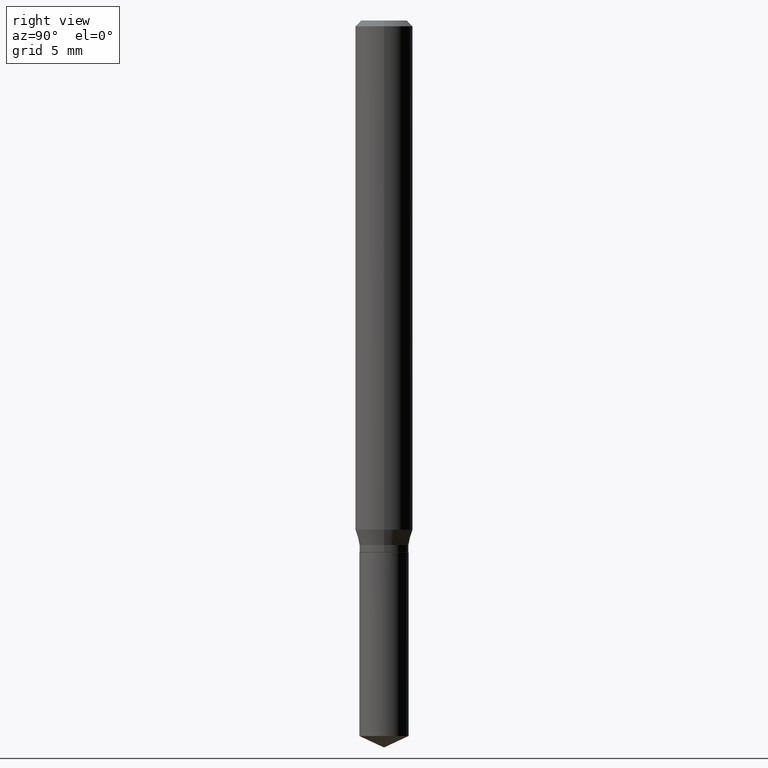
[diagram: clean part render]
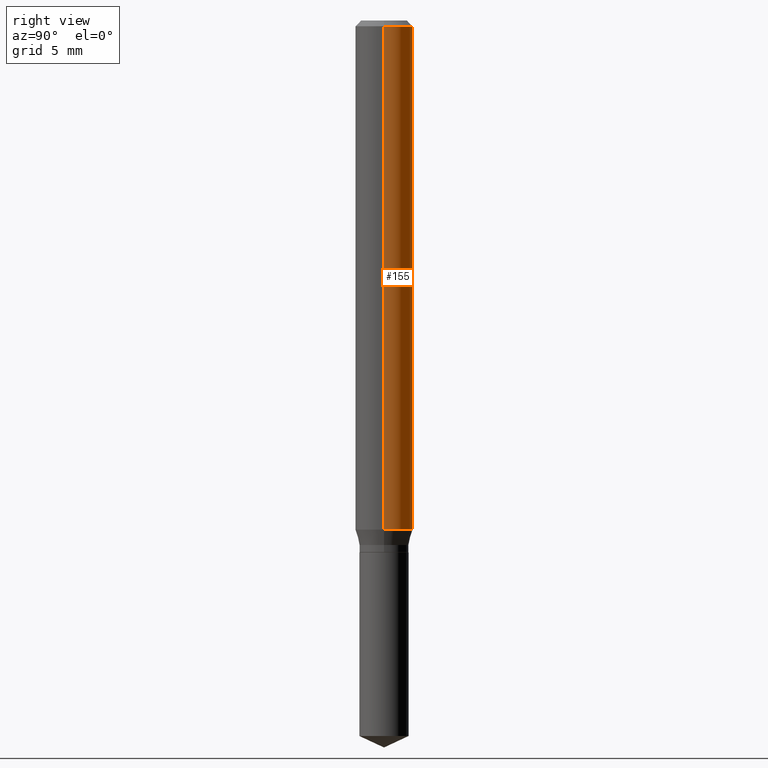
[diagram: same view with one face highlighted and labeled with its STEP entity id]
A machine part, right view. The second image highlights one B-rep face of the part: STEP entity #155.
In plain terms, the highlighted cylindrical surface (edge-blend (fillet) strip) has radius 1.4999 mm, axis along (-0, 0, 1).
Its self-contained STEP definition (entity closure, byte-faithful):
#3 = EDGE_CURVE ( 'NONE', #26, #203, #301, .T. ) ;
#7 = DIRECTION ( 'NONE',  ( -2.445468806185136877E-29, 3.491481338843145188E-15, 1.000000000000000000 ) ) ;
#18 = FACE_OUTER_BOUND ( 'NONE', #472, .T. ) ;
#26 = VERTEX_POINT ( 'NONE', #123 ) ;
#39 = AXIS2_PLACEMENT_3D ( 'NONE', #255, #437, #46 ) ;
#46 = DIRECTION ( 'NONE',  ( 1.000000000000000000, -6.982962677686266711E-15, 4.876176775795936353E-29 ) ) ;
#47 = EDGE_CURVE ( 'NONE', #441, #171, #166, .T. ) ;
#52 = CARTESIAN_POINT ( 'NONE',  ( 2.562274595626701165E-29, -3.658249049423866489E-15, -1.047764170676042550 ) ) ;
#73 = LINE ( 'NONE', #383, #457 ) ;
#87 = CARTESIAN_POINT ( 'NONE',  ( 2.888098660104663328E-31, -4.123439461173779030E-17, -0.01181000000000006871 ) ) ;
#118 = CARTESIAN_POINT ( 'NONE',  ( 0.05904999999999999832, -4.535783407291118600E-16, -0.01181000000000006871 ) ) ;
#123 = CARTESIAN_POINT ( 'NONE',  ( 0.05905000000000013016, -4.070592995541242198E-15, -1.047764170676042550 ) ) ;
#155 = ADVANCED_FACE ( 'NONE', ( #18 ), #324, .T. ) ;
#166 = CIRCLE ( 'NONE', #251, 0.05904999999999999832 ) ;
#171 = VERTEX_POINT ( 'NONE', #289 ) ;
#180 = CARTESIAN_POINT ( 'NONE',  ( -0.05905000000000013016, -3.238673563957526601E-15, -1.047764170676042550 ) ) ;
#203 = VERTEX_POINT ( 'NONE', #180 ) ;
#214 = ORIENTED_EDGE ( 'NONE', *, *, #470, .F. ) ;
#251 = AXIS2_PLACEMENT_3D ( 'NONE', #87, #356, #480 ) ;
#255 = CARTESIAN_POINT ( 'NONE',  ( 0.000000000000000000, 0.000000000000000000, 0.000000000000000000 ) ) ;
#275 = CARTESIAN_POINT ( 'NONE',  ( -0.05905000000000006771, 4.195754854663396409E-16, -2.904631170795525045E-30 ) ) ;
#289 = CARTESIAN_POINT ( 'NONE',  ( -0.05904999999999999832, -1.430166236551461827E-15, -0.01181000000000006871 ) ) ;
#290 = ORIENTED_EDGE ( 'NONE', *, *, #47, .F. ) ;
#301 = CIRCLE ( 'NONE', #401, 0.05905000000000013016 ) ;
#324 = CYLINDRICAL_SURFACE ( 'NONE', #39, 0.05905000000000006771 ) ;
#350 = DIRECTION ( 'NONE',  ( 1.000000000000000000, -6.982962677686265133E-15, 0.000000000000000000 ) ) ;
#353 = DIRECTION ( 'NONE',  ( -2.445468806185136877E-29, 3.491481338843145188E-15, 1.000000000000000000 ) ) ;
#356 = DIRECTION ( 'NONE',  ( -2.445468806185136597E-29, 3.491481338843145583E-15, 1.000000000000000000 ) ) ;
#361 = DIRECTION ( 'NONE',  ( -2.445468806185136597E-29, 3.491481338843145583E-15, 1.000000000000000000 ) ) ;
#380 = VECTOR ( 'NONE', #353, 39.37007874015748143 ) ;
#383 = CARTESIAN_POINT ( 'NONE',  ( 0.05905000000000006771, -4.123439461173745257E-16, 2.879382386107503723E-30 ) ) ;
#390 = ORIENTED_EDGE ( 'NONE', *, *, #3, .T. ) ;
#401 = AXIS2_PLACEMENT_3D ( 'NONE', #52, #361, #350 ) ;
#407 = ORIENTED_EDGE ( 'NONE', *, *, #438, .T. ) ;
#423 = LINE ( 'NONE', #275, #380 ) ;
#437 = DIRECTION ( 'NONE',  ( -2.445468806185136597E-29, 3.491481338843145583E-15, 1.000000000000000000 ) ) ;
#438 = EDGE_CURVE ( 'NONE', #203, #171, #423, .T. ) ;
#441 = VERTEX_POINT ( 'NONE', #118 ) ;
#457 = VECTOR ( 'NONE', #7, 39.37007874015748143 ) ;
#470 = EDGE_CURVE ( 'NONE', #26, #441, #73, .T. ) ;
#472 = EDGE_LOOP ( 'NONE', ( #390, #407, #290, #214 ) ) ;
#480 = DIRECTION ( 'NONE',  ( 1.000000000000000000, -6.982962677686266711E-15, 0.000000000000000000 ) ) ;